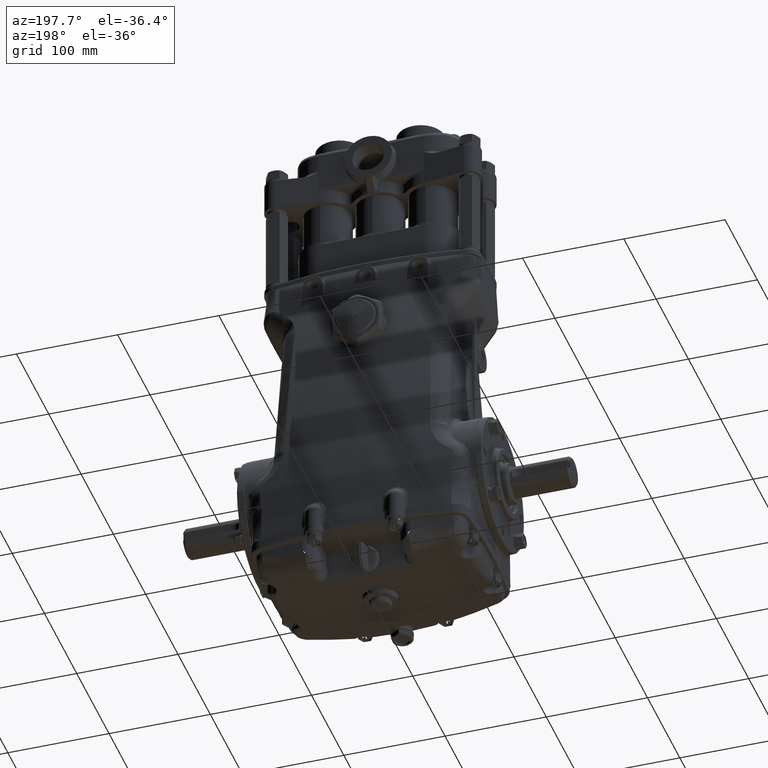
[diagram: clean part render]
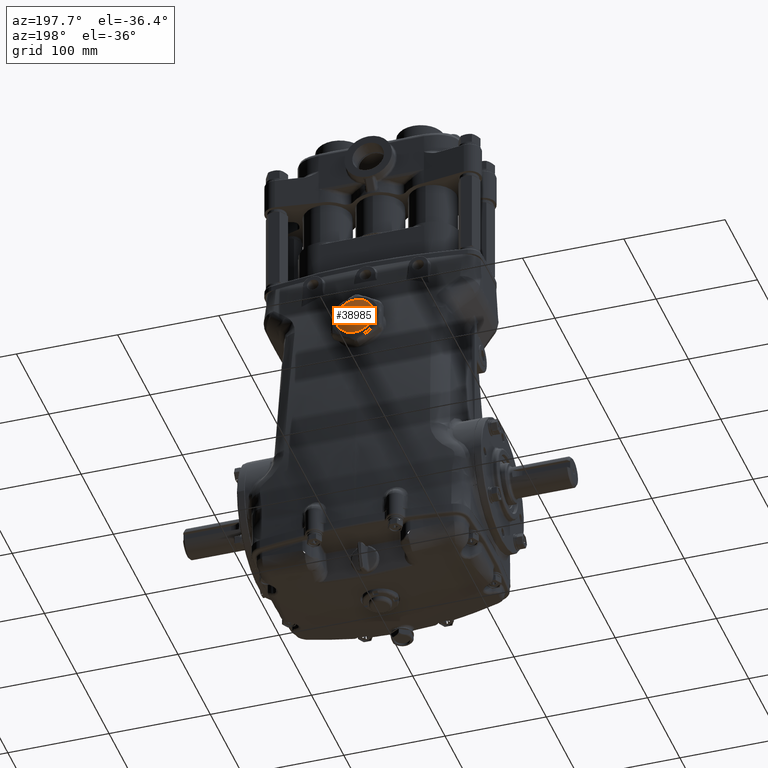
[diagram: same view with one face highlighted and labeled with its STEP entity id]
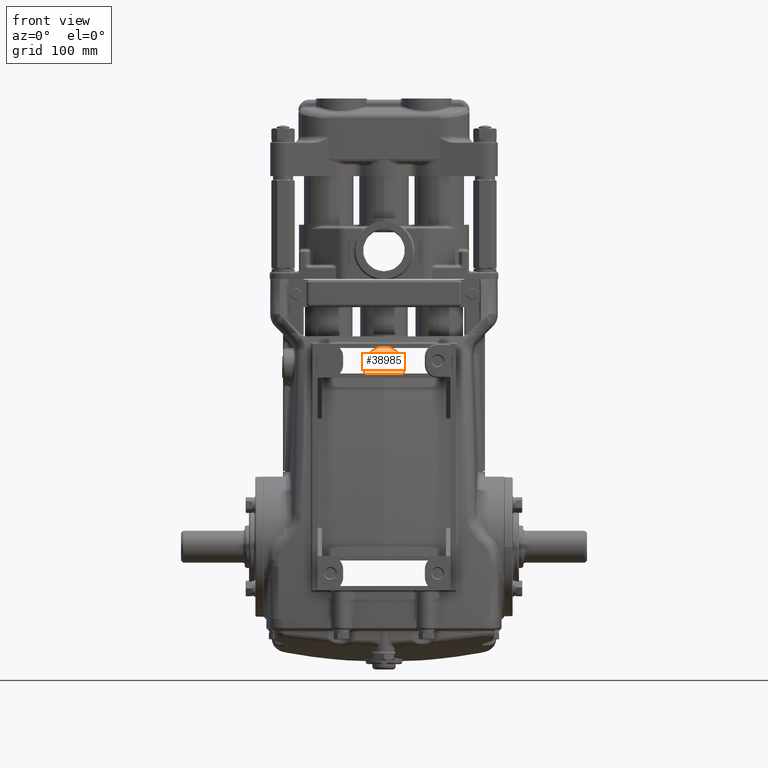
[diagram: same view with one face highlighted and labeled with its STEP entity id]
A machine part, auxiliary view. The second image highlights one B-rep face of the part: STEP entity #38985.
A second angle (front view) of the same face is appended — the face is thin or edge-on in the first view.
In plain terms, the highlighted spherical surface has radius 100 mm.
Its self-contained STEP definition (entity closure, byte-faithful):
#143 = CIRCLE ( 'NONE', #59158, 0.05905511811023627516 ) ;
#5107 = EDGE_LOOP ( 'NONE', ( #9266, #31068 ) ) ;
#9266 = ORIENTED_EDGE ( 'NONE', *, *, #77555, .T. ) ;
#12307 = DIRECTION ( 'NONE',  ( 0.000000000000000000, 0.000000000000000000, 1.000000000000000000 ) ) ;
#13173 = DIRECTION ( 'NONE',  ( -0.000000000000000000, 1.000000000000000000, -0.000000000000000000 ) ) ;
#14741 = SPHERICAL_SURFACE ( 'NONE', #34923, 3.937007874015748143 ) ;
#16814 = FACE_BOUND ( 'NONE', #89049, .T. ) ;
#28453 = EDGE_CURVE ( 'NONE', #101742, #39367, #78551, .T. ) ;
#28601 = CARTESIAN_POINT ( 'NONE',  ( 9.349196156406901570E-17, 3.138598384411150910, 5.914105279987208696 ) ) ;
#30804 = DIRECTION ( 'NONE',  ( 0.000000000000000000, 0.000000000000000000, 1.000000000000000000 ) ) ;
#31068 = ORIENTED_EDGE ( 'NONE', *, *, #88436, .T. ) ;
#31342 = DIRECTION ( 'NONE',  ( -0.000000000000000000, 1.000000000000000000, -0.000000000000000000 ) ) ;
#31614 = DIRECTION ( 'NONE',  ( 1.000000000000000000, 0.000000000000000000, 0.000000000000000000 ) ) ;
#32975 = AXIS2_PLACEMENT_3D ( 'NONE', #45642, #31342, #30804 ) ;
#34923 = AXIS2_PLACEMENT_3D ( 'NONE', #104544, #78659, #31614 ) ;
#38985 = ADVANCED_FACE ( 'NONE', ( #16814, #56437 ), #14741, .T. ) ;
#39367 = VERTEX_POINT ( 'NONE', #102862 ) ;
#43296 = CARTESIAN_POINT ( 'NONE',  ( 0.000000000000000000, 3.138598384411150910, 6.653543307086613900 ) ) ;
#45642 = CARTESIAN_POINT ( 'NONE',  ( 0.000000000000000000, 3.208218479020326086, 6.653543307086613900 ) ) ;
#47839 = VERTEX_POINT ( 'NONE', #28601 ) ;
#48618 = ORIENTED_EDGE ( 'NONE', *, *, #90822, .F. ) ;
#49919 = CARTESIAN_POINT ( 'NONE',  ( 0.000000000000000000, 3.208218479020326086, 6.712598425196850016 ) ) ;
#52420 = DIRECTION ( 'NONE',  ( -0.000000000000000000, 1.000000000000000000, -0.000000000000000000 ) ) ;
#56437 = FACE_OUTER_BOUND ( 'NONE', #5107, .T. ) ;
#59158 = AXIS2_PLACEMENT_3D ( 'NONE', #101391, #13173, #62234 ) ;
#62234 = DIRECTION ( 'NONE',  ( 0.000000000000000000, 0.000000000000000000, 1.000000000000000000 ) ) ;
#64320 = CIRCLE ( 'NONE', #93018, 0.7394380270994049820 ) ;
#69146 = VERTEX_POINT ( 'NONE', #91372 ) ;
#77555 = EDGE_CURVE ( 'NONE', #69146, #47839, #81938, .T. ) ;
#78551 = CIRCLE ( 'NONE', #32975, 0.05905511811023627516 ) ;
#78659 = DIRECTION ( 'NONE',  ( 0.000000000000000000, 1.000000000000000000, 0.000000000000000000 ) ) ;
#81938 = CIRCLE ( 'NONE', #95451, 0.7394380270994049820 ) ;
#83995 = DIRECTION ( 'NONE',  ( -0.000000000000000000, 1.000000000000000000, -0.000000000000000000 ) ) ;
#85176 = CARTESIAN_POINT ( 'NONE',  ( 0.000000000000000000, 3.138598384411150910, 6.653543307086613900 ) ) ;
#88436 = EDGE_CURVE ( 'NONE', #47839, #69146, #64320, .T. ) ;
#89049 = EDGE_LOOP ( 'NONE', ( #92699, #48618 ) ) ;
#90822 = EDGE_CURVE ( 'NONE', #39367, #101742, #143, .T. ) ;
#91372 = CARTESIAN_POINT ( 'NONE',  ( 0.000000000000000000, 3.138598384411150910, 7.392981334186018216 ) ) ;
#91926 = DIRECTION ( 'NONE',  ( 0.000000000000000000, 0.000000000000000000, 1.000000000000000000 ) ) ;
#92699 = ORIENTED_EDGE ( 'NONE', *, *, #28453, .F. ) ;
#93018 = AXIS2_PLACEMENT_3D ( 'NONE', #85176, #52420, #12307 ) ;
#95451 = AXIS2_PLACEMENT_3D ( 'NONE', #43296, #83995, #91926 ) ;
#101391 = CARTESIAN_POINT ( 'NONE',  ( 0.000000000000000000, 3.208218479020326086, 6.653543307086613900 ) ) ;
#101742 = VERTEX_POINT ( 'NONE', #49919 ) ;
#102862 = CARTESIAN_POINT ( 'NONE',  ( 7.232166136696873300E-18, 3.208218479020326086, 6.594488188976377785 ) ) ;
#104544 = CARTESIAN_POINT ( 'NONE',  ( 0.000000000000000000, -0.7283464566929140904, 6.653543307086613900 ) ) ;